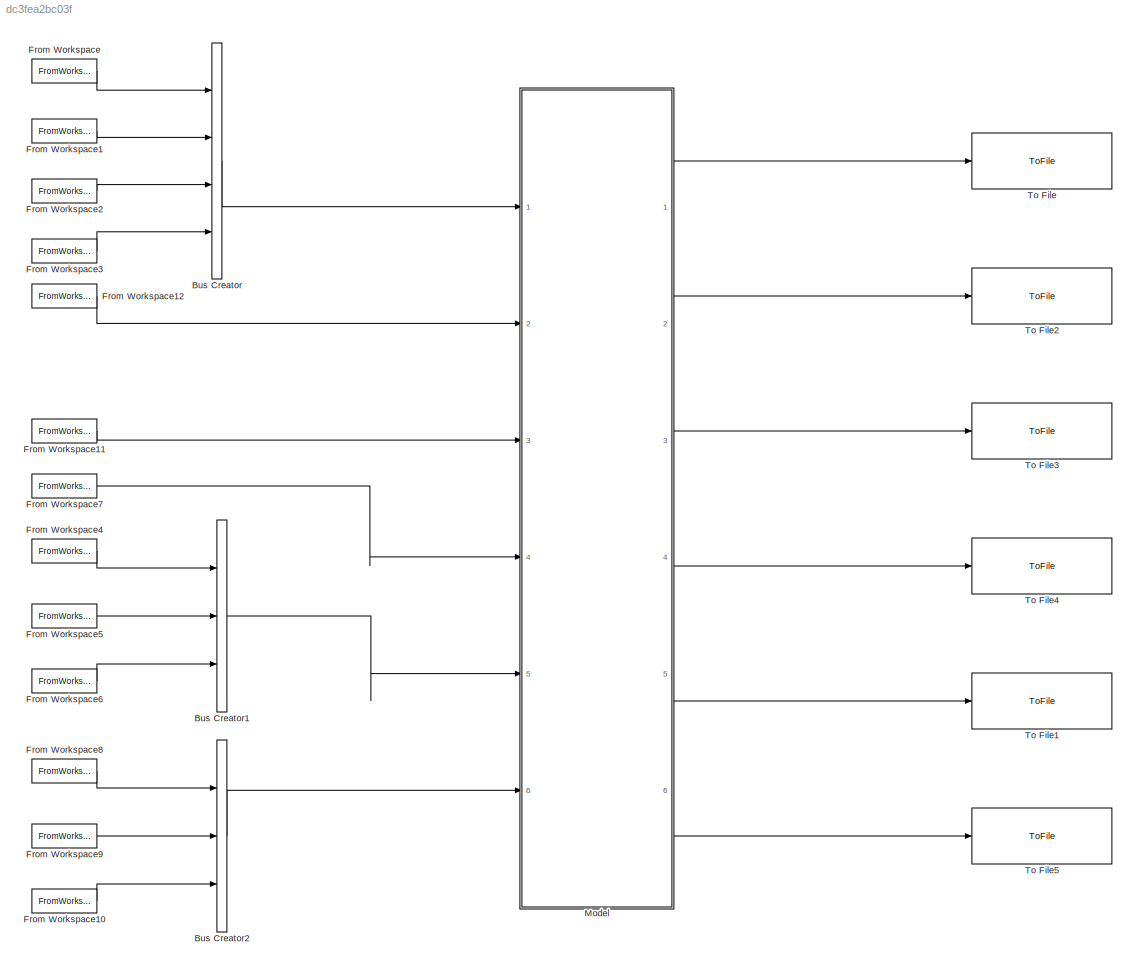
MODEL slx_dc3fea2bc03f
KIND model
CONFIG AbsTol = auto
CONFIG EnableMultiTasking = off
CONFIG FixedStep = auto
CONFIG MaxStep = auto
CONFIG MinStep = auto
CONFIG RelTol = 1e-3
CONFIG SampleTimeConstraint = Unconstrained
CONFIG SolverName = VariableStepAuto
CONFIG StartTime = 0.0
CONFIG StopTime = 100.0
BLOCK [BusCreator] Bus Creator
  DisplayOption = bar
  InheritFromInputs = on
  Inputs = 4
  Ports = [4, 1]
BLOCK [BusCreator] Bus Creator1
  DisplayOption = bar
  InheritFromInputs = on
  Inputs = 3
  Ports = [3, 1]
BLOCK [BusCreator] Bus Creator2
  DisplayOption = bar
  InheritFromInputs = on
  Inputs = 3
  Ports = [3, 1]
BLOCK [FromWorkspace] From Workspace
  VariableName = q0
BLOCK [FromWorkspace] From Workspace1
  VariableName = q1
BLOCK [FromWorkspace] From Workspace10
  VariableName = rot_z
BLOCK [FromWorkspace] From Workspace11
  VariableName = lambda
BLOCK [FromWorkspace] From Workspace12
  VariableName = phi
BLOCK [FromWorkspace] From Workspace2
  VariableName = q2
BLOCK [FromWorkspace] From Workspace3
  VariableName = q3
BLOCK [FromWorkspace] From Workspace4
  VariableName = u
BLOCK [FromWorkspace] From Workspace5
  VariableName = v
BLOCK [FromWorkspace] From Workspace6
  VariableName = w
BLOCK [FromWorkspace] From Workspace7
  VariableName = h
BLOCK [FromWorkspace] From Workspace8
  VariableName = rot_x
BLOCK [FromWorkspace] From Workspace9
  VariableName = rot_y
BLOCK [ModelReference] Model
  ModelNameDialog = wind_field_modelling.slx
  ModelReferenceVersion = 1.20
  Ports = [6, 6]
BLOCK [ToFile] To File
  Filename = u_W.mat
  MatrixName = u_W
  Ports = [1]
  SaveFormat = Timeseries
BLOCK [ToFile] To File1
  Filename = q_W.mat
  MatrixName = q_W
  Ports = [1]
  SaveFormat = Timeseries
BLOCK [ToFile] To File2
  Filename = v_W.mat
  MatrixName = v_W
  Ports = [1]
  SaveFormat = Timeseries
BLOCK [ToFile] To File3
  Filename = w_W.mat
  MatrixName = w_W
  Ports = [1]
  SaveFormat = Timeseries
BLOCK [ToFile] To File4
  Filename = p_W.mat
  MatrixName = p_W
  Ports = [1]
  SaveFormat = Timeseries
BLOCK [ToFile] To File5
  Filename = r_W.mat
  MatrixName = r_W
  Ports = [1]
  SaveFormat = Timeseries
LINE Bus Creator1:1 -> Model:5
LINE Bus Creator2:1 -> Model:6
LINE Bus Creator:1 -> Model:1
LINE From Workspace10:1 -> Bus Creator2:3
LINE From Workspace11:1 -> Model:3
LINE From Workspace12:1 -> Model:2
LINE From Workspace1:1 -> Bus Creator:2
LINE From Workspace2:1 -> Bus Creator:3
LINE From Workspace3:1 -> Bus Creator:4
LINE From Workspace4:1 -> Bus Creator1:1
LINE From Workspace5:1 -> Bus Creator1:2
LINE From Workspace6:1 -> Bus Creator1:3
LINE From Workspace7:1 -> Model:4
LINE From Workspace8:1 -> Bus Creator2:1
LINE From Workspace9:1 -> Bus Creator2:2
LINE From Workspace:1 -> Bus Creator:1
LINE Model:1 -> To File:1
LINE Model:2 -> To File2:1
LINE Model:3 -> To File3:1
LINE Model:4 -> To File4:1
LINE Model:5 -> To File1:1
LINE Model:6 -> To File5:1
